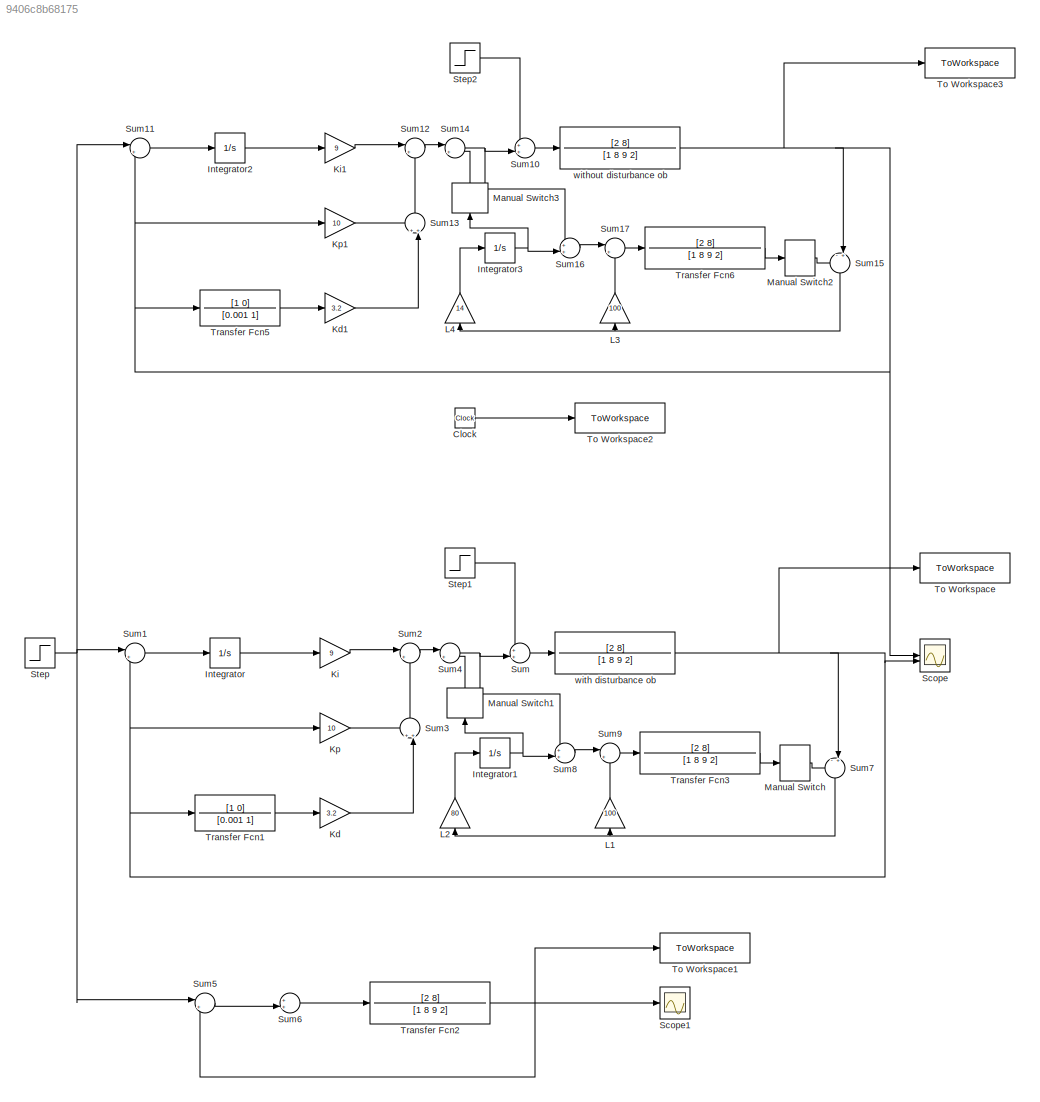
MODEL slx_9406c8b68175
KIND model
CONFIG AbsTol = auto
CONFIG EnableMultiTasking = off
CONFIG FixedStep = auto
CONFIG MaxStep = auto
CONFIG MinStep = auto
CONFIG RelTol = 1e-3
CONFIG SampleTimeConstraint = Unconstrained
CONFIG SolverName = VariableStepAuto
CONFIG StartTime = 0.0
CONFIG StopTime = 10
BLOCK [Clock] Clock
BLOCK [Integrator] Integrator
BLOCK [Integrator] Integrator1
BLOCK [Integrator] Integrator2
BLOCK [Integrator] Integrator3
BLOCK [Gain] Kd
  Gain = 3.2
BLOCK [Gain] Kd1
  Gain = 3.2
BLOCK [Gain] Ki
  Gain = 9
BLOCK [Gain] Ki1
  Gain = 9
BLOCK [Gain] Kp
  Gain = 10
BLOCK [Gain] Kp1
  Gain = 10
BLOCK [Gain] L1
  Gain = 100
  NameLocation = right
BLOCK [Gain] L2
  Gain = 80
  NameLocation = right
BLOCK [Gain] L3
  Gain = 100
  NameLocation = right
BLOCK [Gain] L4
  Gain = 14
  NameLocation = right
BLOCK [ManualSwitch] Manual Switch
BLOCK [ManualSwitch] Manual Switch1
  NameLocation = right
BLOCK [ManualSwitch] Manual Switch2
BLOCK [ManualSwitch] Manual Switch3
  CurrentSetting = 0
  NameLocation = right
BLOCK [Scope] Scope
  Floating = off
  NumInputPorts = 2
  ScopeSpecificationString = Simulink.scopes.TimeScopeBlockCfg('CurrentConfiguration', extmgr.ConfigurationSet(extmgr.Configuration('Core','General UI',true,'FigureColor',[1 1 1]),extmgr.Configuration('Core','Source UI',true),extmgr.Configuration('Sources','WiredSimulink',true),extmgr.Configuration('Visuals','Time Domain',true,'SerializedDisplays',{struct('MinYLimReal','-0.13093','MaxYLimReal','1.17838','YLabelReal','','MinYL...<+1526ch>
BLOCK [Scope] Scope1
  Floating = off
  NumInputPorts = 1
  ScopeSpecificationString = Simulink.scopes.TimeScopeBlockCfg('CurrentConfiguration', extmgr.ConfigurationSet(extmgr.Configuration('Core','General UI',true),extmgr.Configuration('Core','Source UI',true),extmgr.Configuration('Sources','WiredSimulink',true,'DataLoggingVariableName','ScopeData1'),extmgr.Configuration('Visuals','Time Domain',true,'SerializedDisplays',{struct('MinYLimReal','-0.11078','MaxYLimReal','0.99699','YLab...<+1414ch>
BLOCK [Step] Step
  SampleTime = 0
  Time = 2
BLOCK [Step] Step1
  After = -2
  SampleTime = 0
  Time = 6
BLOCK [Step] Step2
  After = -2
  SampleTime = 0
  Time = 6
BLOCK [Sum] Sum
  Inputs = ++|
BLOCK [Sum] Sum1
  Inputs = |+-
BLOCK [Sum] Sum10
  Inputs = ++|
BLOCK [Sum] Sum11
  Inputs = |+-
BLOCK [Sum] Sum12
  Inputs = |+-
BLOCK [Sum] Sum13
  Inputs = ++|
  NameLocation = left
BLOCK [Sum] Sum14
  Inputs = |+-
BLOCK [Sum] Sum15
  Inputs = -+|
BLOCK [Sum] Sum16
  Inputs = ++|
BLOCK [Sum] Sum17
  Inputs = |++
BLOCK [Sum] Sum2
  Inputs = |+-
BLOCK [Sum] Sum3
  Inputs = ++|
  NameLocation = left
BLOCK [Sum] Sum4
  Inputs = |+-
BLOCK [Sum] Sum5
  Inputs = |+-
BLOCK [Sum] Sum6
  Inputs = ++|
BLOCK [Sum] Sum7
  Inputs = -+|
BLOCK [Sum] Sum8
  Inputs = ++|
BLOCK [Sum] Sum9
  Inputs = |++
BLOCK [ToWorkspace] To Workspace
  FixptAsFi = on
  MaxDataPoints = inf
  SampleTime = -1
  SaveFormat = Timeseries
  VariableName = out1
BLOCK [ToWorkspace] To Workspace1
  FixptAsFi = on
  MaxDataPoints = inf
  SampleTime = -1
  SaveFormat = Timeseries
  VariableName = out2
BLOCK [ToWorkspace] To Workspace2
  FixptAsFi = on
  MaxDataPoints = inf
  SampleTime = -1
  SaveFormat = Timeseries
  VariableName = t
BLOCK [ToWorkspace] To Workspace3
  FixptAsFi = on
  MaxDataPoints = inf
  SampleTime = -1
  SaveFormat = Timeseries
  VariableName = out
BLOCK [TransferFcn] Transfer Fcn1
  Denominator = [0.001 1]
  Numerator = [1 0]
BLOCK [TransferFcn] Transfer Fcn2
  Denominator = [1 8 9 2]
  Numerator = [2 8]
BLOCK [TransferFcn] Transfer Fcn3
  Denominator = [1 8 9 2]
  Numerator = [2 8]
BLOCK [TransferFcn] Transfer Fcn5
  Denominator = [0.001 1]
  Numerator = [1 0]
BLOCK [TransferFcn] Transfer Fcn6
  Denominator = [1 8 9 2]
  Numerator = [2 8]
BLOCK [TransferFcn] with disturbance ob
  Denominator = [1 8 9 2]
  Numerator = [2 8]
BLOCK [TransferFcn] without disturbance ob
  Denominator = [1 8 9 2]
  Numerator = [2 8]
LINE Clock:1 -> To Workspace2:1
NET Integrator1:1 -> Manual Switch1:1, Sum8:2
LINE Integrator2:1 -> Ki1:1
NET Integrator3:1 -> Manual Switch3:1, Sum16:2
LINE Integrator:1 -> Ki:1
LINE Kd1:1 -> Sum13:2
LINE Kd:1 -> Sum3:2
LINE Ki1:1 -> Sum12:1
LINE Ki:1 -> Sum2:1
LINE Kp1:1 -> Sum13:1
LINE Kp:1 -> Sum3:1
LINE L1:1 -> Sum9:2
LINE L2:1 -> Integrator1:1
LINE L3:1 -> Sum17:2
LINE L4:1 -> Integrator3:1
LINE Manual Switch1:1 -> Sum4:2
LINE Manual Switch2:1 -> Sum15:1
LINE Manual Switch3:1 -> Sum14:2
LINE Manual Switch:1 -> Sum7:1
LINE Step1:1 -> Sum:1
LINE Step2:1 -> Sum10:1
NET Step:1 -> Sum11:1, Sum1:1, Sum5:1
LINE Sum10:1 -> without disturbance ob:1
LINE Sum11:1 -> Integrator2:1
LINE Sum12:1 -> Sum14:1
LINE Sum13:1 -> Sum12:2
NET Sum14:1 -> Sum10:2, Sum16:1
NET Sum15:1 -> L3:1, L4:1
LINE Sum16:1 -> Sum17:1
LINE Sum17:1 -> Transfer Fcn6:1
LINE Sum1:1 -> Integrator:1
LINE Sum2:1 -> Sum4:1
LINE Sum3:1 -> Sum2:2
NET Sum4:1 -> Sum8:1, Sum:2
LINE Sum5:1 -> Sum6:2
LINE Sum6:1 -> Transfer Fcn2:1
NET Sum7:1 -> L1:1, L2:1
LINE Sum8:1 -> Sum9:1
LINE Sum9:1 -> Transfer Fcn3:1
LINE Sum:1 -> with disturbance ob:1
LINE Transfer Fcn1:1 -> Kd:1
NET Transfer Fcn2:1 -> Scope1:1, Sum5:2, To Workspace1:1
LINE Transfer Fcn3:1 -> Manual Switch:1
LINE Transfer Fcn5:1 -> Kd1:1
LINE Transfer Fcn6:1 -> Manual Switch2:1
NET with disturbance ob:1 -> Kp:1, Scope:2, Sum1:2, Sum7:2, To Workspace:1, Transfer Fcn1:1
NET without disturbance ob:1 -> Kp1:1, Scope:1, Sum11:2, Sum15:2, To Workspace3:1, Transfer Fcn5:1
note: NET lines group one-source signal fan-out (src -> all destinations, sorted); 1:1 wires keep LINE
